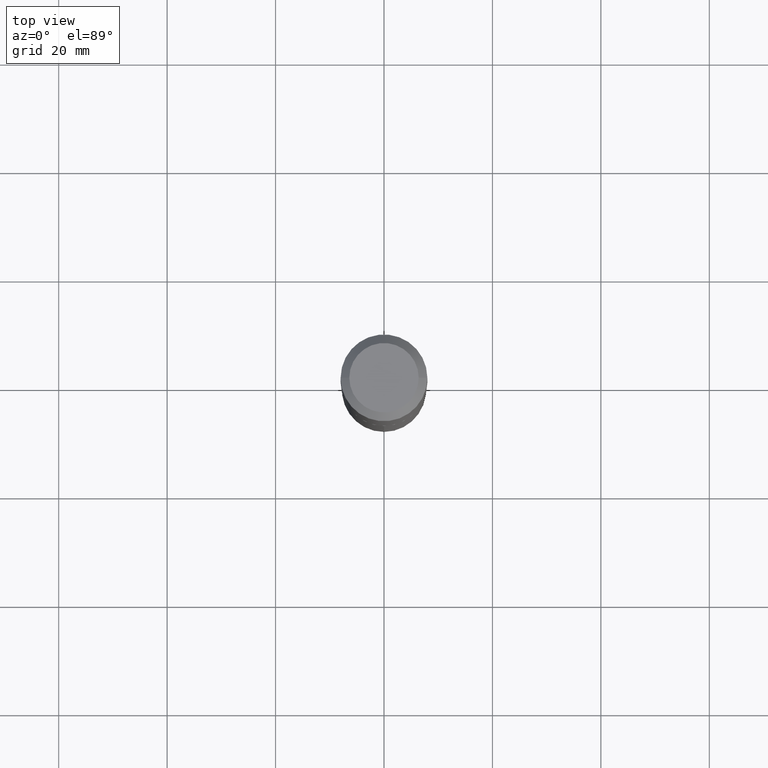
[diagram: clean part render]
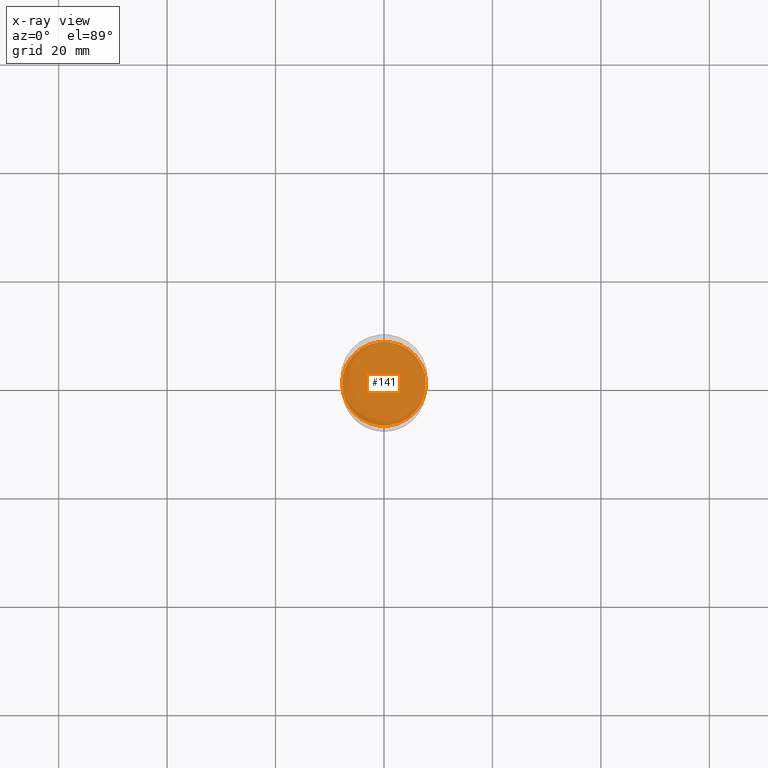
[diagram: x-ray — body ghosted, one internal face saturated and labeled with its STEP entity id]
A machine part, top view, then the same camera in x-ray: the body is ghosted and one INTERNAL B-rep face — a face not visible from any outside direction — is saturated and labeled: STEP entity #141.
In plain terms, the highlighted planar face has unit normal (-0, 0, 1).
Its self-contained STEP definition (entity closure, byte-faithful):
#33 = DIRECTION ( 'NONE',  ( -2.445468806185136597E-29, 3.491481338843145583E-15, 1.000000000000000000 ) ) ;
#38 = VERTEX_POINT ( 'NONE', #367 ) ;
#44 = CIRCLE ( 'NONE', #330, 0.3045999999999999819 ) ;
#46 = VERTEX_POINT ( 'NONE', #409 ) ;
#131 = DIRECTION ( 'NONE',  ( -2.438088387897960049E-29, 3.491481338843145188E-15, 1.000000000000000000 ) ) ;
#141 = ADVANCED_FACE ( 'NONE', ( #250 ), #283, .F. ) ;
#149 = ORIENTED_EDGE ( 'NONE', *, *, #461, .F. ) ;
#169 = CARTESIAN_POINT ( 'NONE',  ( 3.076170230057308953E-29, -1.362896974479920444E-14, -2.578700000000000436 ) ) ;
#176 = CARTESIAN_POINT ( 'NONE',  ( 6.306130410509613019E-29, -9.003482928474821437E-15, -2.578700000000000436 ) ) ;
#222 = CIRCLE ( 'NONE', #280, 0.3045999999999999819 ) ;
#235 = EDGE_CURVE ( 'NONE', #38, #46, #44, .T. ) ;
#250 = FACE_OUTER_BOUND ( 'NONE', #400, .T. ) ;
#269 = DIRECTION ( 'NONE',  ( 1.000000000000000000, -6.982962677686269866E-15, 0.000000000000000000 ) ) ;
#279 = AXIS2_PLACEMENT_3D ( 'NONE', #169, #131, #439 ) ;
#280 = AXIS2_PLACEMENT_3D ( 'NONE', #176, #370, #477 ) ;
#283 = PLANE ( 'NONE',  #279 ) ;
#308 = CARTESIAN_POINT ( 'NONE',  ( 6.306130410509613019E-29, -9.003482928474821437E-15, -2.578700000000000436 ) ) ;
#330 = AXIS2_PLACEMENT_3D ( 'NONE', #308, #33, #269 ) ;
#367 = CARTESIAN_POINT ( 'NONE',  ( -0.3045999999999999819, -6.836520528175443621E-15, -2.578700000000000436 ) ) ;
#370 = DIRECTION ( 'NONE',  ( -2.445468806185136597E-29, 3.491481338843145583E-15, 1.000000000000000000 ) ) ;
#400 = EDGE_LOOP ( 'NONE', ( #149, #433 ) ) ;
#409 = CARTESIAN_POINT ( 'NONE',  ( 0.3045999999999999819, -1.113049336009805869E-14, -2.578700000000000436 ) ) ;
#433 = ORIENTED_EDGE ( 'NONE', *, *, #235, .F. ) ;
#439 = DIRECTION ( 'NONE',  ( 1.000000000000000000, -6.982962677686265922E-15, 4.876176775795935793E-29 ) ) ;
#461 = EDGE_CURVE ( 'NONE', #46, #38, #222, .T. ) ;
#477 = DIRECTION ( 'NONE',  ( 1.000000000000000000, -6.982962677686269866E-15, 0.000000000000000000 ) ) ;